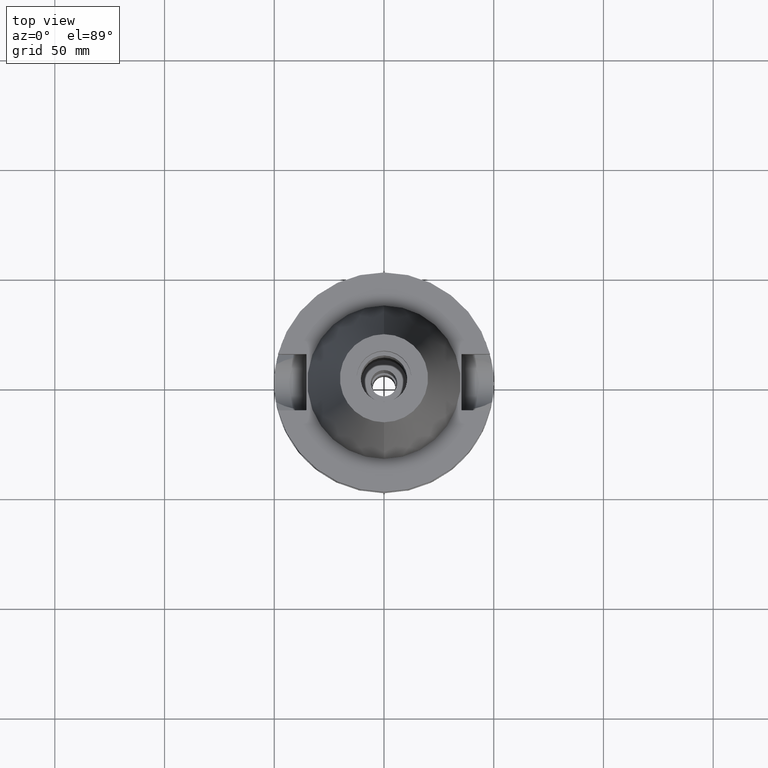
[diagram: clean part render]
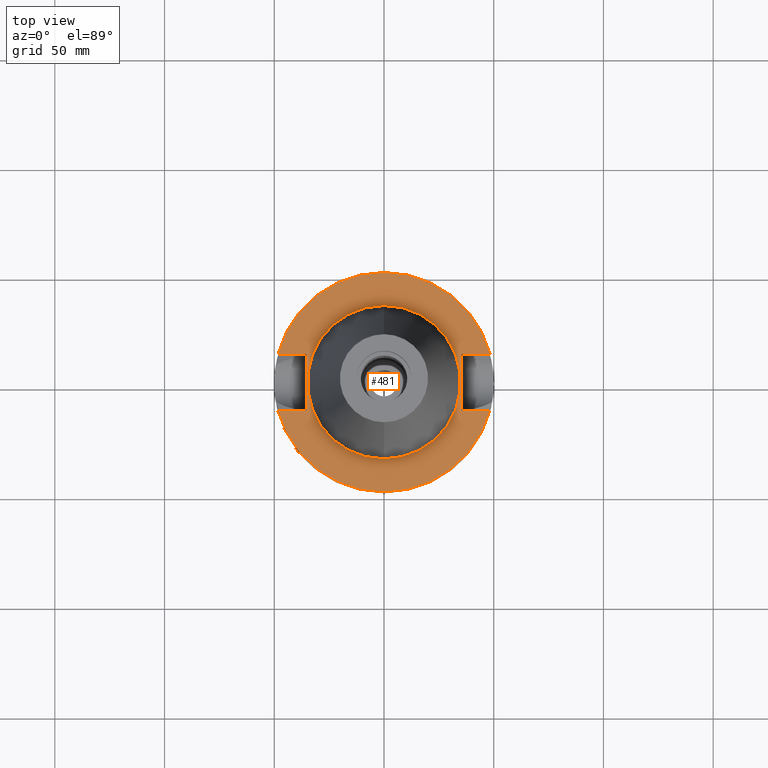
[diagram: same view with one face highlighted and labeled with its STEP entity id]
A machine part, top view. The second image highlights one B-rep face of the part: STEP entity #481.
In plain terms, the highlighted planar face has unit normal (0, 0, -1).
Its self-contained STEP definition (entity closure, byte-faithful):
#80 = VERTEX_POINT ( 'NONE', #802 ) ;
#102 = EDGE_CURVE ( 'NONE', #316, #1915, #2574, .T. ) ;
#142 = EDGE_CURVE ( 'NONE', #903, #2334, #911, .T. ) ;
#179 = DIRECTION ( 'NONE',  ( 0.0000000000000000000, 0.0000000000000000000, 1.000000000000000000 ) ) ;
#197 = DIRECTION ( 'NONE',  ( 1.000000000000000000, 0.0000000000000000000, 0.0000000000000000000 ) ) ;
#241 = ORIENTED_EDGE ( 'NONE', *, *, #142, .F. ) ;
#316 = VERTEX_POINT ( 'NONE', #720 ) ;
#337 = ORIENTED_EDGE ( 'NONE', *, *, #2645, .F. ) ;
#338 = ORIENTED_EDGE ( 'NONE', *, *, #1211, .F. ) ;
#374 = ORIENTED_EDGE ( 'NONE', *, *, #1654, .T. ) ;
#424 = CIRCLE ( 'NONE', #1177, 34.92499999999999716 ) ;
#481 = ADVANCED_FACE ( 'NONE', ( #1502, #2229 ), #2478, .F. ) ;
#521 = CARTESIAN_POINT ( 'NONE',  ( 48.32057015392000210, -12.84999999999999964, -1.500000000000000000 ) ) ;
#644 = VERTEX_POINT ( 'NONE', #3050 ) ;
#666 = LINE ( 'NONE', #3072, #1943 ) ;
#685 = CARTESIAN_POINT ( 'NONE',  ( -35.39999999999999858, -12.84999999999999964, -1.500000000000000000 ) ) ;
#693 = DIRECTION ( 'NONE',  ( 0.0000000000000000000, 0.0000000000000000000, 1.000000000000000000 ) ) ;
#720 = CARTESIAN_POINT ( 'NONE',  ( -48.32057015392000210, 12.84999999999999964, -1.500000000000000000 ) ) ;
#760 = AXIS2_PLACEMENT_3D ( 'NONE', #2079, #2596, #838 ) ;
#802 = CARTESIAN_POINT ( 'NONE',  ( 0.0000000000000000000, 34.92499999999999716, -1.500000000000000000 ) ) ;
#819 = VECTOR ( 'NONE', #2834, 1000.000000000000000 ) ;
#838 = DIRECTION ( 'NONE',  ( 0.0000000000000000000, -1.000000000000000000, 0.0000000000000000000 ) ) ;
#889 = DIRECTION ( 'NONE',  ( 1.000000000000000000, 0.0000000000000000000, 0.0000000000000000000 ) ) ;
#900 = EDGE_LOOP ( 'NONE', ( #374, #241, #338, #1054, #1249, #2203, #1542, #2600 ) ) ;
#903 = VERTEX_POINT ( 'NONE', #521 ) ;
#911 = CIRCLE ( 'NONE', #760, 50.00000000000000000 ) ;
#927 = CARTESIAN_POINT ( 'NONE',  ( 0.0000000000000000000, 2.650013208674999776E-14, -1.500000000000000000 ) ) ;
#947 = LINE ( 'NONE', #685, #1233 ) ;
#967 = VERTEX_POINT ( 'NONE', #1006 ) ;
#1006 = CARTESIAN_POINT ( 'NONE',  ( 35.39999999999999858, -12.84999999999999964, -1.500000000000000000 ) ) ;
#1016 = DIRECTION ( 'NONE',  ( 0.0000000000000000000, 0.0000000000000000000, -1.000000000000000000 ) ) ;
#1054 = ORIENTED_EDGE ( 'NONE', *, *, #3122, .F. ) ;
#1118 = EDGE_CURVE ( 'NONE', #1119, #644, #666, .T. ) ;
#1119 = VERTEX_POINT ( 'NONE', #1385 ) ;
#1147 = DIRECTION ( 'NONE',  ( 0.0000000000000000000, 1.000000000000000000, 0.0000000000000000000 ) ) ;
#1153 = LINE ( 'NONE', #2133, #819 ) ;
#1160 = ORIENTED_EDGE ( 'NONE', *, *, #2843, .F. ) ;
#1177 = AXIS2_PLACEMENT_3D ( 'NONE', #927, #693, #1910 ) ;
#1211 = EDGE_CURVE ( 'NONE', #967, #903, #2346, .T. ) ;
#1233 = VECTOR ( 'NONE', #1659, 1000.000000000000000 ) ;
#1249 = ORIENTED_EDGE ( 'NONE', *, *, #1649, .T. ) ;
#1261 = CARTESIAN_POINT ( 'NONE',  ( 0.0000000000000000000, 1.206277097159999845E-14, -1.500000000000000000 ) ) ;
#1299 = VERTEX_POINT ( 'NONE', #2959 ) ;
#1332 = CARTESIAN_POINT ( 'NONE',  ( -48.32057015392000210, -12.84999999999999964, -1.500000000000000000 ) ) ;
#1338 = CARTESIAN_POINT ( 'NONE',  ( 0.0000000000000000000, 2.650013208674999776E-14, -1.500000000000000000 ) ) ;
#1347 = DIRECTION ( 'NONE',  ( 0.0000000000000000000, -1.000000000000000000, 0.0000000000000000000 ) ) ;
#1385 = CARTESIAN_POINT ( 'NONE',  ( -35.39999999999999858, -12.84999999999999964, -1.500000000000000000 ) ) ;
#1427 = VECTOR ( 'NONE', #2997, 1000.000000000000000 ) ;
#1479 = VECTOR ( 'NONE', #889, 1000.000000000000000 ) ;
#1487 = EDGE_LOOP ( 'NONE', ( #337, #1160 ) ) ;
#1502 = FACE_OUTER_BOUND ( 'NONE', #900, .T. ) ;
#1542 = ORIENTED_EDGE ( 'NONE', *, *, #2293, .F. ) ;
#1649 = EDGE_CURVE ( 'NONE', #1299, #1915, #2680, .T. ) ;
#1654 = EDGE_CURVE ( 'NONE', #1119, #2334, #947, .T. ) ;
#1659 = DIRECTION ( 'NONE',  ( -1.000000000000000000, 0.0000000000000000000, 0.0000000000000000000 ) ) ;
#1676 = CARTESIAN_POINT ( 'NONE',  ( 48.32057015392000210, 12.84999999999999964, -1.500000000000000000 ) ) ;
#1910 = DIRECTION ( 'NONE',  ( 0.0000000000000000000, -1.000000000000000000, 0.0000000000000000000 ) ) ;
#1915 = VERTEX_POINT ( 'NONE', #1676 ) ;
#1943 = VECTOR ( 'NONE', #1147, 1000.000000000000000 ) ;
#2079 = CARTESIAN_POINT ( 'NONE',  ( 0.0000000000000000000, 2.650013208674999776E-14, -1.500000000000000000 ) ) ;
#2109 = VECTOR ( 'NONE', #197, 1000.000000000000000 ) ;
#2123 = DIRECTION ( 'NONE',  ( 0.0000000000000000000, 1.000000000000000000, 0.0000000000000000000 ) ) ;
#2133 = CARTESIAN_POINT ( 'NONE',  ( 35.39999999999999858, 12.84999999999999964, -1.500000000000000000 ) ) ;
#2135 = VERTEX_POINT ( 'NONE', #2442 ) ;
#2187 = AXIS2_PLACEMENT_3D ( 'NONE', #1261, #1016, #1347 ) ;
#2203 = ORIENTED_EDGE ( 'NONE', *, *, #102, .F. ) ;
#2229 = FACE_BOUND ( 'NONE', #1487, .T. ) ;
#2245 = AXIS2_PLACEMENT_3D ( 'NONE', #1338, #2292, #2559 ) ;
#2292 = DIRECTION ( 'NONE',  ( 0.0000000000000000000, 0.0000000000000000000, -1.000000000000000000 ) ) ;
#2293 = EDGE_CURVE ( 'NONE', #644, #316, #2533, .T. ) ;
#2334 = VERTEX_POINT ( 'NONE', #1332 ) ;
#2346 = LINE ( 'NONE', #3093, #1479 ) ;
#2384 = CARTESIAN_POINT ( 'NONE',  ( 0.0000000000000000000, 2.650013208674999776E-14, -1.500000000000000000 ) ) ;
#2402 = AXIS2_PLACEMENT_3D ( 'NONE', #2384, #179, #2123 ) ;
#2442 = CARTESIAN_POINT ( 'NONE',  ( 0.0000000000000000000, -34.92499999999999716, -1.500000000000000000 ) ) ;
#2478 = PLANE ( 'NONE',  #2187 ) ;
#2493 = CARTESIAN_POINT ( 'NONE',  ( -35.39999999999999858, 12.84999999999999964, -1.500000000000000000 ) ) ;
#2533 = LINE ( 'NONE', #2493, #1427 ) ;
#2559 = DIRECTION ( 'NONE',  ( 0.0000000000000000000, 1.000000000000000000, 0.0000000000000000000 ) ) ;
#2574 = CIRCLE ( 'NONE', #2245, 50.00000000000000000 ) ;
#2596 = DIRECTION ( 'NONE',  ( 0.0000000000000000000, 0.0000000000000000000, -1.000000000000000000 ) ) ;
#2600 = ORIENTED_EDGE ( 'NONE', *, *, #1118, .F. ) ;
#2645 = EDGE_CURVE ( 'NONE', #80, #2135, #3028, .T. ) ;
#2680 = LINE ( 'NONE', #2884, #2109 ) ;
#2834 = DIRECTION ( 'NONE',  ( 0.0000000000000000000, -1.000000000000000000, 0.0000000000000000000 ) ) ;
#2843 = EDGE_CURVE ( 'NONE', #2135, #80, #424, .T. ) ;
#2884 = CARTESIAN_POINT ( 'NONE',  ( 35.39999999999999858, 12.84999999999999964, -1.500000000000000000 ) ) ;
#2959 = CARTESIAN_POINT ( 'NONE',  ( 35.39999999999999858, 12.84999999999999964, -1.500000000000000000 ) ) ;
#2997 = DIRECTION ( 'NONE',  ( -1.000000000000000000, 0.0000000000000000000, 0.0000000000000000000 ) ) ;
#3028 = CIRCLE ( 'NONE', #2402, 34.92499999999999716 ) ;
#3050 = CARTESIAN_POINT ( 'NONE',  ( -35.39999999999999858, 12.84999999999999964, -1.500000000000000000 ) ) ;
#3072 = CARTESIAN_POINT ( 'NONE',  ( -35.39999999999999858, -12.84999999999999964, -1.500000000000000000 ) ) ;
#3093 = CARTESIAN_POINT ( 'NONE',  ( 35.39999999999999858, -12.84999999999999964, -1.500000000000000000 ) ) ;
#3122 = EDGE_CURVE ( 'NONE', #1299, #967, #1153, .T. ) ;